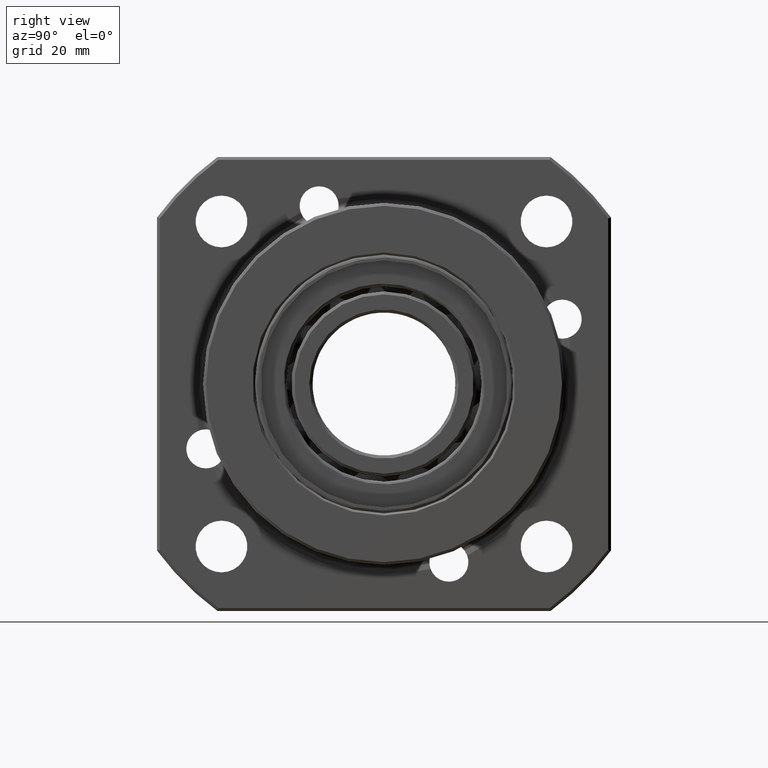
[diagram: clean part render]
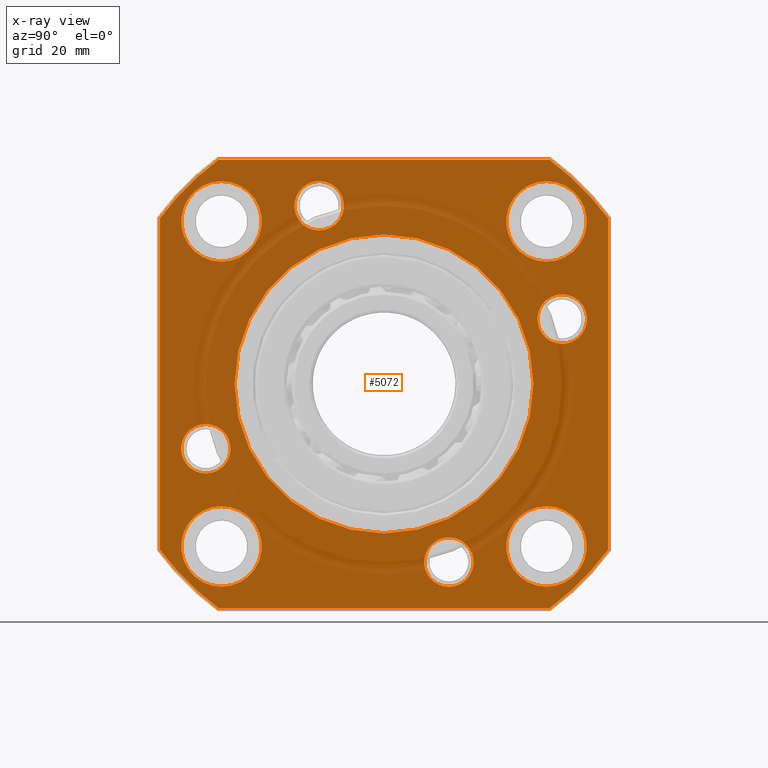
[diagram: x-ray — body ghosted, one internal face saturated and labeled with its STEP entity id]
A machine part, right view, then the same camera in x-ray: the body is ghosted and one INTERNAL B-rep face — a face not visible from any outside direction — is saturated and labeled: STEP entity #5072.
In plain terms, the highlighted planar face has unit normal (-1, 0, 0).
Its self-contained STEP definition (entity closure, byte-faithful):
#45 = VERTEX_POINT ( 'NONE', #6129 ) ;
#101 = EDGE_CURVE ( 'NONE', #8675, #7271, #223, .T. ) ;
#144 = AXIS2_PLACEMENT_3D ( 'NONE', #9983, #4177, #10926 ) ;
#190 = PLANE ( 'NONE',  #9062 ) ;
#200 = DIRECTION ( 'NONE',  ( 0.0000000000000000000, 0.0000000000000000000, 1.000000000000000000 ) ) ;
#210 = DIRECTION ( 'NONE',  ( -1.000000000000000000, 0.0000000000000000000, 0.0000000000000000000 ) ) ;
#212 = CARTESIAN_POINT ( 'NONE',  ( 0.0000000000000000000, 3.467012496382235600E-015, 3.469446951953614200E-015 ) ) ;
#223 = CIRCLE ( 'NONE', #10831, 25.99999999999999600 ) ;
#251 = AXIS2_PLACEMENT_3D ( 'NONE', #9191, #3302, #10124 ) ;
#302 = DIRECTION ( 'NONE',  ( 0.0000000000000000000, 0.0000000000000000000, 1.000000000000000000 ) ) ;
#397 = DIRECTION ( 'NONE',  ( 0.0000000000000000000, 0.0000000000000000000, 1.000000000000000000 ) ) ;
#516 = CIRCLE ( 'NONE', #834, 6.999999999999999100 ) ;
#552 = LINE ( 'NONE', #8601, #3200 ) ;
#622 = DIRECTION ( 'NONE',  ( 0.0000000000000000000, 0.0000000000000000000, 1.000000000000000000 ) ) ;
#637 = CARTESIAN_POINT ( 'NONE',  ( 0.0000000000000000000, -28.83140648667700400, 38.99999999999999300 ) ) ;
#640 = DIRECTION ( 'NONE',  ( 0.0000000000000000000, 0.0000000000000000000, 1.000000000000000000 ) ) ;
#707 = VERTEX_POINT ( 'NONE', #1410 ) ;
#834 = AXIS2_PLACEMENT_3D ( 'NONE', #12726, #7002, #1000 ) ;
#868 = AXIS2_PLACEMENT_3D ( 'NONE', #11703, #11687, #11652 ) ;
#875 = EDGE_CURVE ( 'NONE', #1957, #7340, #4982, .T. ) ;
#907 = AXIS2_PLACEMENT_3D ( 'NONE', #3383, #10191, #4415 ) ;
#946 = DIRECTION ( 'NONE',  ( 0.0000000000000000000, 0.0000000000000000000, 1.000000000000000000 ) ) ;
#1000 = DIRECTION ( 'NONE',  ( 0.0000000000000000000, 0.0000000000000000000, 1.000000000000000000 ) ) ;
#1091 = CIRCLE ( 'NONE', #2646, 4.299999999999990900 ) ;
#1220 = DIRECTION ( 'NONE',  ( 1.000000000000000000, -0.0000000000000000000, -0.0000000000000000000 ) ) ;
#1251 = EDGE_CURVE ( 'NONE', #11235, #3308, #7423, .T. ) ;
#1327 = CARTESIAN_POINT ( 'NONE',  ( 0.0000000000000000000, -38.99999999999999300, 28.83140648667700000 ) ) ;
#1392 = EDGE_CURVE ( 'NONE', #2152, #6422, #8643, .T. ) ;
#1410 = CARTESIAN_POINT ( 'NONE',  ( 0.0000000000000000000, 31.00985648593508500, 15.58666472974677900 ) ) ;
#1442 = CIRCLE ( 'NONE', #3216, 48.50000000000000000 ) ;
#1500 = CIRCLE ( 'NONE', #10904, 6.999999999999999100 ) ;
#1634 = VERTEX_POINT ( 'NONE', #8398 ) ;
#1665 = CARTESIAN_POINT ( 'NONE',  ( 0.0000000000000000000, 3.467012496382234800E-015, 3.166031116752753600E-015 ) ) ;
#1698 = CIRCLE ( 'NONE', #2977, 6.999999999999999100 ) ;
#1957 = VERTEX_POINT ( 'NONE', #6497 ) ;
#2031 = AXIS2_PLACEMENT_3D ( 'NONE', #12041, #6337, #302 ) ;
#2042 = AXIS2_PLACEMENT_3D ( 'NONE', #2759, #2753, #2748 ) ;
#2134 = CARTESIAN_POINT ( 'NONE',  ( 0.0000000000000000000, 31.00985648593508500, 11.28666472974678000 ) ) ;
#2152 = VERTEX_POINT ( 'NONE', #5165 ) ;
#2280 = FACE_BOUND ( 'NONE', #5529, .T. ) ;
#2299 = CARTESIAN_POINT ( 'NONE',  ( 0.0000000000000000000, 28.28427124746176000, -35.28427124746203700 ) ) ;
#2326 = ORIENTED_EDGE ( 'NONE', *, *, #2961, .F. ) ;
#2452 = CIRCLE ( 'NONE', #3944, 6.999999999999999100 ) ;
#2617 = VERTEX_POINT ( 'NONE', #2299 ) ;
#2646 = AXIS2_PLACEMENT_3D ( 'NONE', #12135, #6437, #397 ) ;
#2680 = DIRECTION ( 'NONE',  ( 0.0000000000000000000, 0.0000000000000000000, 1.000000000000000000 ) ) ;
#2748 = DIRECTION ( 'NONE',  ( 0.0000000000000000000, 0.0000000000000000000, 1.000000000000000000 ) ) ;
#2753 = DIRECTION ( 'NONE',  ( -1.000000000000000000, 0.0000000000000000000, 0.0000000000000000000 ) ) ;
#2759 = CARTESIAN_POINT ( 'NONE',  ( 0.0000000000000000000, 28.28427124746176000, -28.28427124746204100 ) ) ;
#2862 = VECTOR ( 'NONE', #9415, 1000.000000000000000 ) ;
#2952 = CIRCLE ( 'NONE', #251, 6.999999999999995600 ) ;
#2961 = EDGE_CURVE ( 'NONE', #7340, #11282, #1442, .T. ) ;
#2977 = AXIS2_PLACEMENT_3D ( 'NONE', #12680, #6954, #946 ) ;
#3159 = DIRECTION ( 'NONE',  ( 0.0000000000000000000, 0.0000000000000000000, 1.000000000000000000 ) ) ;
#3200 = VECTOR ( 'NONE', #9530, 1000.000000000000000 ) ;
#3216 = AXIS2_PLACEMENT_3D ( 'NONE', #212, #210, #200 ) ;
#3302 = DIRECTION ( 'NONE',  ( -1.000000000000000000, 0.0000000000000000000, 0.0000000000000000000 ) ) ;
#3308 = VERTEX_POINT ( 'NONE', #11094 ) ;
#3345 = EDGE_LOOP ( 'NONE', ( #10119, #10108 ) ) ;
#3383 = CARTESIAN_POINT ( 'NONE',  ( 0.0000000000000000000, -31.00985648593500000, -11.28666472974699000 ) ) ;
#3386 = VERTEX_POINT ( 'NONE', #10825 ) ;
#3392 = VERTEX_POINT ( 'NONE', #10891 ) ;
#3485 = CARTESIAN_POINT ( 'NONE',  ( 0.0000000000000000000, 49.00000000000000000, 1.404621675807926600E-014 ) ) ;
#3527 = AXIS2_PLACEMENT_3D ( 'NONE', #10920, #10907, #10902 ) ;
#3627 = EDGE_CURVE ( 'NONE', #11282, #11235, #3972, .T. ) ;
#3737 = AXIS2_PLACEMENT_3D ( 'NONE', #6908, #6904, #6888 ) ;
#3935 = EDGE_CURVE ( 'NONE', #12619, #12015, #1500, .T. ) ;
#3944 = AXIS2_PLACEMENT_3D ( 'NONE', #5778, #5770, #5728 ) ;
#3965 = CARTESIAN_POINT ( 'NONE',  ( 0.0000000000000000000, 38.99999999999999300, 1.404621675807929100E-014 ) ) ;
#3972 = LINE ( 'NONE', #9239, #2862 ) ;
#4133 = CARTESIAN_POINT ( 'NONE',  ( 0.0000000000000000000, 3.467012496382235600E-015, 3.469446951953614200E-015 ) ) ;
#4163 = CARTESIAN_POINT ( 'NONE',  ( 0.0000000000000000000, 31.00985648593508500, 6.986664729746782300 ) ) ;
#4177 = DIRECTION ( 'NONE',  ( -1.000000000000000000, 0.0000000000000000000, 0.0000000000000000000 ) ) ;
#4209 = EDGE_CURVE ( 'NONE', #12015, #12619, #2452, .T. ) ;
#4392 = CIRCLE ( 'NONE', #2042, 6.999999999999995600 ) ;
#4415 = DIRECTION ( 'NONE',  ( 0.0000000000000000000, 0.0000000000000000000, 1.000000000000000000 ) ) ;
#4503 = VERTEX_POINT ( 'NONE', #4163 ) ;
#4545 = DIRECTION ( 'NONE',  ( 1.000000000000000000, -0.0000000000000000000, -0.0000000000000000000 ) ) ;
#4602 = CIRCLE ( 'NONE', #5616, 4.299999999999998000 ) ;
#4642 = EDGE_CURVE ( 'NONE', #2617, #10252, #4392, .T. ) ;
#4895 = ORIENTED_EDGE ( 'NONE', *, *, #4209, .T. ) ;
#4906 = CIRCLE ( 'NONE', #907, 4.299999999999998000 ) ;
#4963 = DIRECTION ( 'NONE',  ( -0.0000000000000000000, -0.0000000000000000000, -1.000000000000000000 ) ) ;
#4982 = LINE ( 'NONE', #9782, #5087 ) ;
#4986 = FACE_BOUND ( 'NONE', #5696, .T. ) ;
#5014 = LINE ( 'NONE', #3965, #10142 ) ;
#5072 = ADVANCED_FACE ( 'NONE', ( #12705, #7930, #10118, #11002, #10416, #5313, #4986, #2280, #12382, #9834 ), #190, .F. ) ;
#5087 = VECTOR ( 'NONE', #640, 1000.000000000000000 ) ;
#5109 = CIRCLE ( 'NONE', #144, 6.999999999999995600 ) ;
#5139 = DIRECTION ( 'NONE',  ( 0.0000000000000000000, 0.0000000000000000000, 1.000000000000000000 ) ) ;
#5147 = DIRECTION ( 'NONE',  ( 0.0000000000000000000, 0.0000000000000000000, 1.000000000000000000 ) ) ;
#5165 = CARTESIAN_POINT ( 'NONE',  ( 0.0000000000000000000, -31.00985648593500000, -15.58666472974698900 ) ) ;
#5177 = CARTESIAN_POINT ( 'NONE',  ( 0.0000000000000000000, 3.467012496382234800E-015, 26.00000000000000000 ) ) ;
#5201 = EDGE_CURVE ( 'NONE', #1634, #3392, #11470, .T. ) ;
#5313 = FACE_BOUND ( 'NONE', #5672, .T. ) ;
#5529 = EDGE_LOOP ( 'NONE', ( #10033, #10012 ) ) ;
#5534 = AXIS2_PLACEMENT_3D ( 'NONE', #7215, #1220, #8184 ) ;
#5545 = EDGE_CURVE ( 'NONE', #12659, #45, #9090, .T. ) ;
#5596 = VERTEX_POINT ( 'NONE', #6307 ) ;
#5603 = CARTESIAN_POINT ( 'NONE',  ( 0.0000000000000000000, 3.467012496382234800E-015, 3.166031116752753600E-015 ) ) ;
#5616 = AXIS2_PLACEMENT_3D ( 'NONE', #10317, #4545, #11276 ) ;
#5640 = DIRECTION ( 'NONE',  ( 1.000000000000000000, -0.0000000000000000000, -0.0000000000000000000 ) ) ;
#5655 = DIRECTION ( 'NONE',  ( 1.000000000000000000, -0.0000000000000000000, -0.0000000000000000000 ) ) ;
#5672 = EDGE_LOOP ( 'NONE', ( #10273, #10264 ) ) ;
#5682 = EDGE_LOOP ( 'NONE', ( #10016, #10064 ) ) ;
#5696 = EDGE_LOOP ( 'NONE', ( #9978, #10023 ) ) ;
#5728 = DIRECTION ( 'NONE',  ( 0.0000000000000000000, 0.0000000000000000000, 1.000000000000000000 ) ) ;
#5740 = CARTESIAN_POINT ( 'NONE',  ( 0.0000000000000000000, 28.28427124746194800, 35.28427124746185200 ) ) ;
#5744 = ORIENTED_EDGE ( 'NONE', *, *, #6652, .F. ) ;
#5770 = DIRECTION ( 'NONE',  ( -1.000000000000000000, 0.0000000000000000000, 0.0000000000000000000 ) ) ;
#5778 = CARTESIAN_POINT ( 'NONE',  ( 0.0000000000000000000, -28.28427124746155400, 28.28427124746224300 ) ) ;
#5837 = EDGE_LOOP ( 'NONE', ( #10140, #9903, #9911, #9953, #12092, #2326, #9937, #5744 ) ) ;
#5985 = CIRCLE ( 'NONE', #7202, 4.299999999999998000 ) ;
#6129 = CARTESIAN_POINT ( 'NONE',  ( 0.0000000000000000000, 11.28666472974710500, -35.30985648593495800 ) ) ;
#6307 = CARTESIAN_POINT ( 'NONE',  ( 0.0000000000000000000, -28.28427124746214000, -21.28427124746166000 ) ) ;
#6337 = DIRECTION ( 'NONE',  ( -1.000000000000000000, 0.0000000000000000000, 0.0000000000000000000 ) ) ;
#6364 = VERTEX_POINT ( 'NONE', #7476 ) ;
#6422 = VERTEX_POINT ( 'NONE', #12259 ) ;
#6437 = DIRECTION ( 'NONE',  ( 1.000000000000000000, -0.0000000000000000000, -0.0000000000000000000 ) ) ;
#6497 = CARTESIAN_POINT ( 'NONE',  ( 0.0000000000000000000, -38.99999999999999300, -28.83140648667700000 ) ) ;
#6501 = CARTESIAN_POINT ( 'NONE',  ( 0.0000000000000000000, -28.28427124746214000, -35.28427124746165300 ) ) ;
#6652 = EDGE_CURVE ( 'NONE', #6364, #1957, #9951, .T. ) ;
#6803 = VERTEX_POINT ( 'NONE', #9203 ) ;
#6878 = EDGE_CURVE ( 'NONE', #3392, #6364, #552, .T. ) ;
#6888 = DIRECTION ( 'NONE',  ( 0.0000000000000000000, 0.0000000000000000000, 1.000000000000000000 ) ) ;
#6904 = DIRECTION ( 'NONE',  ( 1.000000000000000000, -0.0000000000000000000, -0.0000000000000000000 ) ) ;
#6908 = CARTESIAN_POINT ( 'NONE',  ( 0.0000000000000000000, 11.28666472974710500, -31.00985648593496100 ) ) ;
#6954 = DIRECTION ( 'NONE',  ( -1.000000000000000000, 0.0000000000000000000, 0.0000000000000000000 ) ) ;
#7002 = DIRECTION ( 'NONE',  ( -1.000000000000000000, 0.0000000000000000000, 0.0000000000000000000 ) ) ;
#7056 = CIRCLE ( 'NONE', #8252, 4.299999999999998000 ) ;
#7202 = AXIS2_PLACEMENT_3D ( 'NONE', #2134, #9071, #3159 ) ;
#7215 = CARTESIAN_POINT ( 'NONE',  ( 0.0000000000000000000, -11.28666472974688200, 31.00985648593505300 ) ) ;
#7259 = EDGE_CURVE ( 'NONE', #5596, #7585, #5109, .T. ) ;
#7271 = VERTEX_POINT ( 'NONE', #5177 ) ;
#7282 = CARTESIAN_POINT ( 'NONE',  ( 0.0000000000000000000, 28.28427124746194800, 21.28427124746185600 ) ) ;
#7340 = VERTEX_POINT ( 'NONE', #1327 ) ;
#7423 = CIRCLE ( 'NONE', #3527, 48.49999999999998600 ) ;
#7426 = DIRECTION ( 'NONE',  ( -1.000000000000000000, 0.0000000000000000000, 0.0000000000000000000 ) ) ;
#7476 = CARTESIAN_POINT ( 'NONE',  ( 0.0000000000000000000, -28.83140648667698600, -39.00000000000000700 ) ) ;
#7558 = DIRECTION ( 'NONE',  ( 0.0000000000000000000, 0.0000000000000000000, 1.000000000000000000 ) ) ;
#7569 = DIRECTION ( 'NONE',  ( -1.000000000000000000, 0.0000000000000000000, 0.0000000000000000000 ) ) ;
#7585 = VERTEX_POINT ( 'NONE', #6501 ) ;
#7586 = CARTESIAN_POINT ( 'NONE',  ( 0.0000000000000000000, -28.28427124746155400, 28.28427124746224300 ) ) ;
#7930 = FACE_BOUND ( 'NONE', #10996, .T. ) ;
#8184 = DIRECTION ( 'NONE',  ( 0.0000000000000000000, 0.0000000000000000000, 1.000000000000000000 ) ) ;
#8252 = AXIS2_PLACEMENT_3D ( 'NONE', #11377, #5640, #12364 ) ;
#8398 = CARTESIAN_POINT ( 'NONE',  ( 0.0000000000000000000, 39.00000000000000000, -28.83140648667699300 ) ) ;
#8552 = EDGE_CURVE ( 'NONE', #10252, #2617, #9334, .T. ) ;
#8601 = CARTESIAN_POINT ( 'NONE',  ( 0.0000000000000000000, 49.00000000000000000, -38.99999999999999300 ) ) ;
#8639 = DIRECTION ( 'NONE',  ( 1.000000000000000000, -0.0000000000000000000, -0.0000000000000000000 ) ) ;
#8643 = CIRCLE ( 'NONE', #10684, 4.299999999999998000 ) ;
#8654 = CARTESIAN_POINT ( 'NONE',  ( 0.0000000000000000000, -28.28427124746155400, 21.28427124746224700 ) ) ;
#8675 = VERTEX_POINT ( 'NONE', #10396 ) ;
#9062 = AXIS2_PLACEMENT_3D ( 'NONE', #3485, #7426, #622 ) ;
#9071 = DIRECTION ( 'NONE',  ( 1.000000000000000000, -0.0000000000000000000, -0.0000000000000000000 ) ) ;
#9090 = CIRCLE ( 'NONE', #3737, 4.299999999999998000 ) ;
#9184 = AXIS2_PLACEMENT_3D ( 'NONE', #1665, #8639, #2680 ) ;
#9185 = VERTEX_POINT ( 'NONE', #5740 ) ;
#9191 = CARTESIAN_POINT ( 'NONE',  ( 0.0000000000000000000, -28.28427124746214000, -28.28427124746165300 ) ) ;
#9203 = CARTESIAN_POINT ( 'NONE',  ( 0.0000000000000000000, -11.28666472974688200, 35.30985648593504300 ) ) ;
#9239 = CARTESIAN_POINT ( 'NONE',  ( 0.0000000000000000000, 49.00000000000000000, 38.99999999999999300 ) ) ;
#9334 = CIRCLE ( 'NONE', #2031, 6.999999999999995600 ) ;
#9402 = EDGE_CURVE ( 'NONE', #11205, #9185, #516, .T. ) ;
#9415 = DIRECTION ( 'NONE',  ( 0.0000000000000000000, 1.000000000000000000, 0.0000000000000000000 ) ) ;
#9530 = DIRECTION ( 'NONE',  ( -0.0000000000000000000, -1.000000000000000000, -0.0000000000000000000 ) ) ;
#9543 = CARTESIAN_POINT ( 'NONE',  ( 0.0000000000000000000, 28.28427124746176000, -21.28427124746204400 ) ) ;
#9782 = CARTESIAN_POINT ( 'NONE',  ( 0.0000000000000000000, -38.99999999999999300, 1.404621675807929100E-014 ) ) ;
#9791 = EDGE_LOOP ( 'NONE', ( #10932, #11012 ) ) ;
#9834 = FACE_OUTER_BOUND ( 'NONE', #5837, .T. ) ;
#9903 = ORIENTED_EDGE ( 'NONE', *, *, #5201, .F. ) ;
#9907 = DIRECTION ( 'NONE',  ( 0.0000000000000000000, 0.0000000000000000000, 1.000000000000000000 ) ) ;
#9911 = ORIENTED_EDGE ( 'NONE', *, *, #12091, .F. ) ;
#9918 = DIRECTION ( 'NONE',  ( 1.000000000000000000, -0.0000000000000000000, -0.0000000000000000000 ) ) ;
#9923 = CARTESIAN_POINT ( 'NONE',  ( 0.0000000000000000000, -31.00985648593500000, -11.28666472974699000 ) ) ;
#9937 = ORIENTED_EDGE ( 'NONE', *, *, #875, .F. ) ;
#9951 = CIRCLE ( 'NONE', #11632, 48.50000000000000000 ) ;
#9953 = ORIENTED_EDGE ( 'NONE', *, *, #1251, .F. ) ;
#9978 = ORIENTED_EDGE ( 'NONE', *, *, #10019, .F. ) ;
#9983 = CARTESIAN_POINT ( 'NONE',  ( 0.0000000000000000000, -28.28427124746214000, -28.28427124746165300 ) ) ;
#10012 = ORIENTED_EDGE ( 'NONE', *, *, #12261, .F. ) ;
#10016 = ORIENTED_EDGE ( 'NONE', *, *, #11428, .F. ) ;
#10019 = EDGE_CURVE ( 'NONE', #6422, #2152, #4906, .T. ) ;
#10023 = ORIENTED_EDGE ( 'NONE', *, *, #1392, .F. ) ;
#10025 = CIRCLE ( 'NONE', #5534, 4.299999999999990900 ) ;
#10033 = ORIENTED_EDGE ( 'NONE', *, *, #10722, .F. ) ;
#10064 = ORIENTED_EDGE ( 'NONE', *, *, #10122, .F. ) ;
#10108 = ORIENTED_EDGE ( 'NONE', *, *, #4642, .T. ) ;
#10118 = FACE_BOUND ( 'NONE', #3345, .T. ) ;
#10119 = ORIENTED_EDGE ( 'NONE', *, *, #8552, .T. ) ;
#10122 = EDGE_CURVE ( 'NONE', #4503, #707, #4602, .T. ) ;
#10124 = DIRECTION ( 'NONE',  ( 0.0000000000000000000, 0.0000000000000000000, 1.000000000000000000 ) ) ;
#10128 = ORIENTED_EDGE ( 'NONE', *, *, #7259, .T. ) ;
#10140 = ORIENTED_EDGE ( 'NONE', *, *, #6878, .F. ) ;
#10142 = VECTOR ( 'NONE', #4963, 1000.000000000000000 ) ;
#10153 = ORIENTED_EDGE ( 'NONE', *, *, #3935, .T. ) ;
#10191 = DIRECTION ( 'NONE',  ( 1.000000000000000000, -0.0000000000000000000, -0.0000000000000000000 ) ) ;
#10212 = ORIENTED_EDGE ( 'NONE', *, *, #11490, .T. ) ;
#10252 = VERTEX_POINT ( 'NONE', #9543 ) ;
#10264 = ORIENTED_EDGE ( 'NONE', *, *, #11617, .F. ) ;
#10273 = ORIENTED_EDGE ( 'NONE', *, *, #5545, .F. ) ;
#10317 = CARTESIAN_POINT ( 'NONE',  ( 0.0000000000000000000, 31.00985648593508500, 11.28666472974678000 ) ) ;
#10379 = CARTESIAN_POINT ( 'NONE',  ( 0.0000000000000000000, 28.83140648667697200, 39.00000000000000000 ) ) ;
#10396 = CARTESIAN_POINT ( 'NONE',  ( 0.0000000000000000000, 6.651094174165352600E-015, -25.99999999999999300 ) ) ;
#10416 = FACE_BOUND ( 'NONE', #12191, .T. ) ;
#10466 = CIRCLE ( 'NONE', #9184, 25.99999999999999600 ) ;
#10684 = AXIS2_PLACEMENT_3D ( 'NONE', #9923, #9918, #9907 ) ;
#10722 = EDGE_CURVE ( 'NONE', #6803, #3386, #10025, .T. ) ;
#10825 = CARTESIAN_POINT ( 'NONE',  ( 0.0000000000000000000, -11.28666472974688200, 26.70985648593505600 ) ) ;
#10828 = ORIENTED_EDGE ( 'NONE', *, *, #11043, .T. ) ;
#10831 = AXIS2_PLACEMENT_3D ( 'NONE', #5603, #5655, #5147 ) ;
#10887 = DIRECTION ( 'NONE',  ( -1.000000000000000000, 0.0000000000000000000, 0.0000000000000000000 ) ) ;
#10891 = CARTESIAN_POINT ( 'NONE',  ( 0.0000000000000000000, 28.83140648667700700, -38.99999999999999300 ) ) ;
#10896 = EDGE_CURVE ( 'NONE', #7271, #8675, #10466, .T. ) ;
#10902 = DIRECTION ( 'NONE',  ( 0.0000000000000000000, 0.0000000000000000000, 1.000000000000000000 ) ) ;
#10904 = AXIS2_PLACEMENT_3D ( 'NONE', #7586, #7569, #7558 ) ;
#10907 = DIRECTION ( 'NONE',  ( -1.000000000000000000, 0.0000000000000000000, 0.0000000000000000000 ) ) ;
#10920 = CARTESIAN_POINT ( 'NONE',  ( 0.0000000000000000000, 3.467012496382235600E-015, 3.469446951953614200E-015 ) ) ;
#10926 = DIRECTION ( 'NONE',  ( 0.0000000000000000000, 0.0000000000000000000, 1.000000000000000000 ) ) ;
#10932 = ORIENTED_EDGE ( 'NONE', *, *, #10896, .F. ) ;
#10996 = EDGE_LOOP ( 'NONE', ( #10828, #12727 ) ) ;
#11002 = FACE_BOUND ( 'NONE', #12204, .T. ) ;
#11012 = ORIENTED_EDGE ( 'NONE', *, *, #101, .F. ) ;
#11043 = EDGE_CURVE ( 'NONE', #9185, #11205, #1698, .T. ) ;
#11094 = CARTESIAN_POINT ( 'NONE',  ( 0.0000000000000000000, 38.99999999999999300, 28.83140648667697200 ) ) ;
#11128 = CARTESIAN_POINT ( 'NONE',  ( 0.0000000000000000000, -28.28427124746155400, 35.28427124746224300 ) ) ;
#11205 = VERTEX_POINT ( 'NONE', #7282 ) ;
#11235 = VERTEX_POINT ( 'NONE', #10379 ) ;
#11276 = DIRECTION ( 'NONE',  ( 0.0000000000000000000, 0.0000000000000000000, 1.000000000000000000 ) ) ;
#11282 = VERTEX_POINT ( 'NONE', #637 ) ;
#11377 = CARTESIAN_POINT ( 'NONE',  ( 0.0000000000000000000, 11.28666472974710500, -31.00985648593496100 ) ) ;
#11428 = EDGE_CURVE ( 'NONE', #707, #4503, #5985, .T. ) ;
#11470 = CIRCLE ( 'NONE', #868, 48.50000000000000000 ) ;
#11490 = EDGE_CURVE ( 'NONE', #7585, #5596, #2952, .T. ) ;
#11617 = EDGE_CURVE ( 'NONE', #45, #12659, #7056, .T. ) ;
#11632 = AXIS2_PLACEMENT_3D ( 'NONE', #4133, #10887, #5139 ) ;
#11652 = DIRECTION ( 'NONE',  ( 0.0000000000000000000, 0.0000000000000000000, 1.000000000000000000 ) ) ;
#11687 = DIRECTION ( 'NONE',  ( -1.000000000000000000, 0.0000000000000000000, 0.0000000000000000000 ) ) ;
#11703 = CARTESIAN_POINT ( 'NONE',  ( 0.0000000000000000000, 3.467012496382235600E-015, 3.469446951953614200E-015 ) ) ;
#12015 = VERTEX_POINT ( 'NONE', #8654 ) ;
#12041 = CARTESIAN_POINT ( 'NONE',  ( 0.0000000000000000000, 28.28427124746176000, -28.28427124746204100 ) ) ;
#12091 = EDGE_CURVE ( 'NONE', #3308, #1634, #5014, .T. ) ;
#12092 = ORIENTED_EDGE ( 'NONE', *, *, #3627, .F. ) ;
#12135 = CARTESIAN_POINT ( 'NONE',  ( 0.0000000000000000000, -11.28666472974688200, 31.00985648593505300 ) ) ;
#12160 = CARTESIAN_POINT ( 'NONE',  ( 0.0000000000000000000, 11.28666472974710500, -26.70985648593496400 ) ) ;
#12191 = EDGE_LOOP ( 'NONE', ( #10153, #4895 ) ) ;
#12204 = EDGE_LOOP ( 'NONE', ( #10128, #10212 ) ) ;
#12259 = CARTESIAN_POINT ( 'NONE',  ( 0.0000000000000000000, -31.00985648593500000, -6.986664729746991900 ) ) ;
#12261 = EDGE_CURVE ( 'NONE', #3386, #6803, #1091, .T. ) ;
#12364 = DIRECTION ( 'NONE',  ( 0.0000000000000000000, 0.0000000000000000000, 1.000000000000000000 ) ) ;
#12382 = FACE_BOUND ( 'NONE', #5682, .T. ) ;
#12619 = VERTEX_POINT ( 'NONE', #11128 ) ;
#12659 = VERTEX_POINT ( 'NONE', #12160 ) ;
#12680 = CARTESIAN_POINT ( 'NONE',  ( 0.0000000000000000000, 28.28427124746194800, 28.28427124746185600 ) ) ;
#12705 = FACE_BOUND ( 'NONE', #9791, .T. ) ;
#12726 = CARTESIAN_POINT ( 'NONE',  ( 0.0000000000000000000, 28.28427124746194800, 28.28427124746185600 ) ) ;
#12727 = ORIENTED_EDGE ( 'NONE', *, *, #9402, .T. ) ;